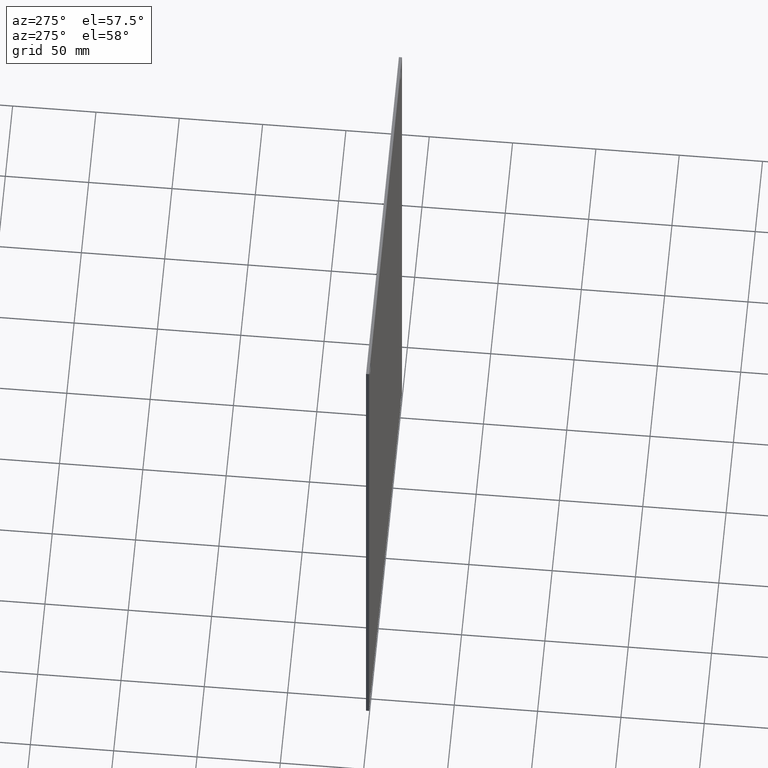
[diagram: clean part render]
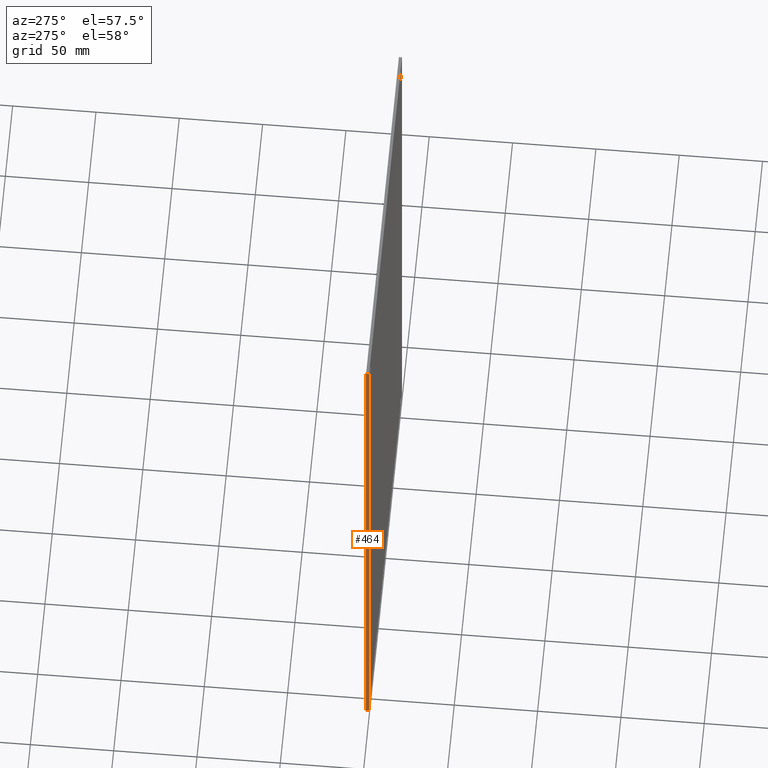
[diagram: same view with one face highlighted and labeled with its STEP entity id]
A machine part, auxiliary view. The second image highlights one B-rep face of the part: STEP entity #464.
In plain terms, the highlighted planar face has unit normal (-1, 0, 0).
Its self-contained STEP definition (entity closure, byte-faithful):
#14 = VERTEX_POINT ( 'NONE', #380 ) ;
#55 = ORIENTED_EDGE ( 'NONE', *, *, #472, .F. ) ;
#57 = CARTESIAN_POINT ( 'NONE',  ( -4.437500000000000000, 0.07200000000000000844, 7.375000000000000000 ) ) ;
#77 = VECTOR ( 'NONE', #363, 39.37007874015748143 ) ;
#80 = CARTESIAN_POINT ( 'NONE',  ( -4.437500000000000000, 0.07200000000000000844, 7.375000000000000000 ) ) ;
#86 = CARTESIAN_POINT ( 'NONE',  ( -4.437500000000000000, 0.07200000000000000844, -7.375000000000000000 ) ) ;
#88 = CARTESIAN_POINT ( 'NONE',  ( -4.437500000000000000, 0.0000000000000000000, 7.375000000000000000 ) ) ;
#94 = ORIENTED_EDGE ( 'NONE', *, *, #205, .F. ) ;
#133 = AXIS2_PLACEMENT_3D ( 'NONE', #57, #493, #175 ) ;
#159 = FACE_OUTER_BOUND ( 'NONE', #246, .T. ) ;
#164 = ORIENTED_EDGE ( 'NONE', *, *, #213, .T. ) ;
#175 = DIRECTION ( 'NONE',  ( 0.0000000000000000000, 0.0000000000000000000, 1.000000000000000000 ) ) ;
#205 = EDGE_CURVE ( 'NONE', #225, #287, #443, .T. ) ;
#213 = EDGE_CURVE ( 'NONE', #14, #287, #339, .T. ) ;
#225 = VERTEX_POINT ( 'NONE', #235 ) ;
#230 = LINE ( 'NONE', #80, #77 ) ;
#235 = CARTESIAN_POINT ( 'NONE',  ( -4.437500000000000000, 0.0000000000000000000, -7.375000000000000000 ) ) ;
#237 = DIRECTION ( 'NONE',  ( -0.0000000000000000000, -0.0000000000000000000, -1.000000000000000000 ) ) ;
#245 = EDGE_CURVE ( 'NONE', #14, #344, #230, .T. ) ;
#246 = EDGE_LOOP ( 'NONE', ( #164, #94, #55, #491 ) ) ;
#252 = DIRECTION ( 'NONE',  ( 0.0000000000000000000, -0.0000000000000000000, -1.000000000000000000 ) ) ;
#261 = VECTOR ( 'NONE', #237, 39.37007874015748143 ) ;
#273 = VECTOR ( 'NONE', #355, 39.37007874015748143 ) ;
#287 = VERTEX_POINT ( 'NONE', #86 ) ;
#315 = VECTOR ( 'NONE', #252, 39.37007874015748143 ) ;
#339 = LINE ( 'NONE', #519, #261 ) ;
#344 = VERTEX_POINT ( 'NONE', #88 ) ;
#355 = DIRECTION ( 'NONE',  ( 0.0000000000000000000, 1.000000000000000000, 0.0000000000000000000 ) ) ;
#363 = DIRECTION ( 'NONE',  ( 0.0000000000000000000, -1.000000000000000000, -0.0000000000000000000 ) ) ;
#371 = CARTESIAN_POINT ( 'NONE',  ( -4.437500000000000000, 0.0000000000000000000, -7.375000000000000000 ) ) ;
#380 = CARTESIAN_POINT ( 'NONE',  ( -4.437500000000000000, 0.07200000000000000844, 7.375000000000000000 ) ) ;
#424 = CARTESIAN_POINT ( 'NONE',  ( -4.437500000000000000, 0.07200000000000000844, -7.375000000000000000 ) ) ;
#443 = LINE ( 'NONE', #424, #273 ) ;
#447 = LINE ( 'NONE', #371, #315 ) ;
#464 = ADVANCED_FACE ( 'NONE', ( #159 ), #495, .T. ) ;
#472 = EDGE_CURVE ( 'NONE', #344, #225, #447, .T. ) ;
#491 = ORIENTED_EDGE ( 'NONE', *, *, #245, .F. ) ;
#493 = DIRECTION ( 'NONE',  ( -1.000000000000000000, 0.0000000000000000000, 0.0000000000000000000 ) ) ;
#495 = PLANE ( 'NONE',  #133 ) ;
#519 = CARTESIAN_POINT ( 'NONE',  ( -4.437500000000000000, 0.07200000000000000844, 7.375000000000000000 ) ) ;